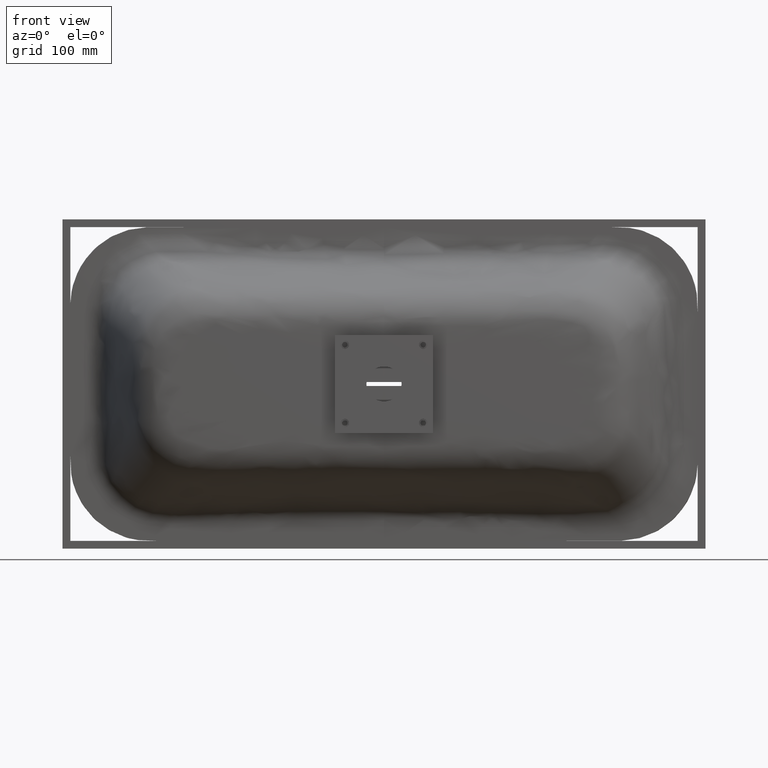
[diagram: clean part render]
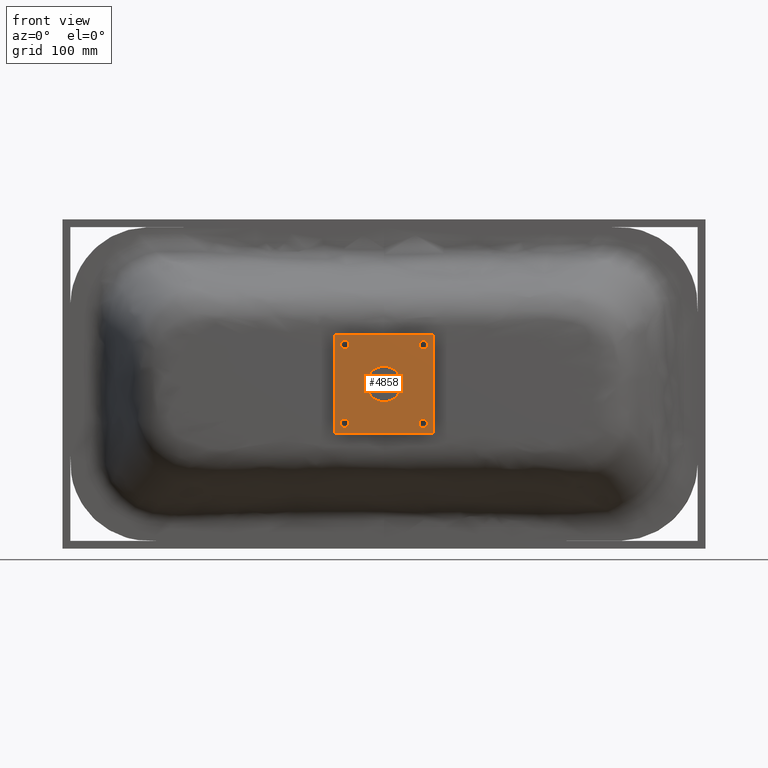
[diagram: same view with one face highlighted and labeled with its STEP entity id]
A machine part, front view. The second image highlights one B-rep face of the part: STEP entity #4858.
In plain terms, the highlighted planar face has unit normal (0, 1, 0).
Its self-contained STEP definition (entity closure, byte-faithful):
#132 = EDGE_LOOP ( 'NONE', ( #606, #2262 ) ) ;
#141 = VERTEX_POINT ( 'NONE', #382 ) ;
#153 = CARTESIAN_POINT ( 'NONE',  ( 62.49999999999978700, -25.99999999999999600, -62.50000000000020600 ) ) ;
#185 = AXIS2_PLACEMENT_3D ( 'NONE', #6838, #6846, #6865 ) ;
#187 = FACE_BOUND ( 'NONE', #369, .T. ) ;
#222 = EDGE_LOOP ( 'NONE', ( #767, #6126 ) ) ;
#229 = DIRECTION ( 'NONE',  ( -3.413935800722356400E-015, 0.0000000000000000000, -1.000000000000000000 ) ) ;
#261 = DIRECTION ( 'NONE',  ( -1.000000000000000000, 0.0000000000000000000, 3.413935800722356400E-015 ) ) ;
#275 = DIRECTION ( 'NONE',  ( 0.0000000000000000000, 1.000000000000000000, 0.0000000000000000000 ) ) ;
#276 = PLANE ( 'NONE',  #3379 ) ;
#299 = FACE_BOUND ( 'NONE', #222, .T. ) ;
#330 = DIRECTION ( 'NONE',  ( 1.000000000000000000, 0.0000000000000000000, -3.784851220313030000E-015 ) ) ;
#361 = CARTESIAN_POINT ( 'NONE',  ( -62.49999999999978700, -25.99999999999999600, 62.50000000000020600 ) ) ;
#363 = EDGE_LOOP ( 'NONE', ( #1933, #9019 ) ) ;
#369 = EDGE_LOOP ( 'NONE', ( #7130, #4144 ) ) ;
#379 = EDGE_LOOP ( 'NONE', ( #2188, #4484, #966, #10035 ) ) ;
#382 = CARTESIAN_POINT ( 'NONE',  ( 55.50000000000017800, -25.99999999999999600, 49.99999999999979400 ) ) ;
#478 = EDGE_CURVE ( 'NONE', #9123, #4082, #6441, .T. ) ;
#495 = CARTESIAN_POINT ( 'NONE',  ( -62.49999999999978700, -25.99999999999999600, 62.50000000000020600 ) ) ;
#539 = VERTEX_POINT ( 'NONE', #8892 ) ;
#582 = DIRECTION ( 'NONE',  ( 0.0000000000000000000, -1.000000000000000000, -0.0000000000000000000 ) ) ;
#606 = ORIENTED_EDGE ( 'NONE', *, *, #9841, .T. ) ;
#767 = ORIENTED_EDGE ( 'NONE', *, *, #4165, .F. ) ;
#966 = ORIENTED_EDGE ( 'NONE', *, *, #3439, .F. ) ;
#1015 = CARTESIAN_POINT ( 'NONE',  ( 22.50000000000000400, -25.99999999999999600, -7.405810021817149000E-014 ) ) ;
#1073 = CARTESIAN_POINT ( 'NONE',  ( 62.50000000000020600, -25.99999999999999600, 62.49999999999978700 ) ) ;
#1115 = VERTEX_POINT ( 'NONE', #8760 ) ;
#1130 = CIRCLE ( 'NONE', #4909, 5.500000000000005300 ) ;
#1449 = VERTEX_POINT ( 'NONE', #8701 ) ;
#1503 = ORIENTED_EDGE ( 'NONE', *, *, #1555, .F. ) ;
#1514 = EDGE_CURVE ( 'NONE', #1726, #539, #8471, .T. ) ;
#1555 = EDGE_CURVE ( 'NONE', #7004, #1449, #6589, .T. ) ;
#1726 = VERTEX_POINT ( 'NONE', #495 ) ;
#1795 = VERTEX_POINT ( 'NONE', #1015 ) ;
#1872 = AXIS2_PLACEMENT_3D ( 'NONE', #7691, #582, #330 ) ;
#1933 = ORIENTED_EDGE ( 'NONE', *, *, #9845, .F. ) ;
#2166 = CARTESIAN_POINT ( 'NONE',  ( 55.49999999999983700, -25.99999999999999600, -50.00000000000024200 ) ) ;
#2188 = ORIENTED_EDGE ( 'NONE', *, *, #1514, .F. ) ;
#2262 = ORIENTED_EDGE ( 'NONE', *, *, #4133, .T. ) ;
#2265 = CARTESIAN_POINT ( 'NONE',  ( -55.50000000000017800, -25.99999999999999600, -49.99999999999985100 ) ) ;
#2838 = DIRECTION ( 'NONE',  ( 1.000000000000000000, 0.0000000000000000000, -3.784851220313030000E-015 ) ) ;
#2889 = EDGE_CURVE ( 'NONE', #1449, #7004, #7376, .T. ) ;
#2901 = DIRECTION ( 'NONE',  ( 0.0000000000000000000, -1.000000000000000000, -0.0000000000000000000 ) ) ;
#2914 = CARTESIAN_POINT ( 'NONE',  ( 50.00000000000017800, -25.99999999999999600, 49.99999999999981500 ) ) ;
#2939 = EDGE_CURVE ( 'NONE', #6977, #5603, #9982, .T. ) ;
#3229 = CIRCLE ( 'NONE', #4885, 5.500000000000005300 ) ;
#3379 = AXIS2_PLACEMENT_3D ( 'NONE', #361, #275, #261 ) ;
#3406 = CARTESIAN_POINT ( 'NONE',  ( -62.50000000000020600, -25.99999999999999600, -62.49999999999978700 ) ) ;
#3415 = DIRECTION ( 'NONE',  ( 3.413935800722356400E-015, 0.0000000000000000000, 1.000000000000000000 ) ) ;
#3439 = EDGE_CURVE ( 'NONE', #4397, #4070, #6832, .T. ) ;
#3750 = AXIS2_PLACEMENT_3D ( 'NONE', #2914, #2901, #2838 ) ;
#3762 = FACE_BOUND ( 'NONE', #132, .T. ) ;
#3819 = DIRECTION ( 'NONE',  ( -1.000000000000000000, 0.0000000000000000000, 3.413935800722356400E-015 ) ) ;
#3887 = CARTESIAN_POINT ( 'NONE',  ( -44.50000000000017100, -25.99999999999999600, -49.99999999999989300 ) ) ;
#3906 = CARTESIAN_POINT ( 'NONE',  ( 62.49999999999978700, -25.99999999999999600, -62.50000000000020600 ) ) ;
#4045 = CIRCLE ( 'NONE', #5017, 22.50000000000000400 ) ;
#4070 = VERTEX_POINT ( 'NONE', #8899 ) ;
#4082 = VERTEX_POINT ( 'NONE', #3887 ) ;
#4133 = EDGE_CURVE ( 'NONE', #1795, #1115, #6718, .T. ) ;
#4144 = ORIENTED_EDGE ( 'NONE', *, *, #478, .F. ) ;
#4165 = EDGE_CURVE ( 'NONE', #141, #4663, #6656, .T. ) ;
#4397 = VERTEX_POINT ( 'NONE', #9016 ) ;
#4484 = ORIENTED_EDGE ( 'NONE', *, *, #8068, .F. ) ;
#4652 = ORIENTED_EDGE ( 'NONE', *, *, #2889, .F. ) ;
#4663 = VERTEX_POINT ( 'NONE', #9336 ) ;
#4747 = CIRCLE ( 'NONE', #3750, 5.500000000000005300 ) ;
#4858 = ADVANCED_FACE ( 'NONE', ( #8596, #299, #6419, #187, #3762, #5922 ), #276, .F. ) ;
#4885 = AXIS2_PLACEMENT_3D ( 'NONE', #8272, #8270, #8247 ) ;
#4909 = AXIS2_PLACEMENT_3D ( 'NONE', #8085, #8057, #8046 ) ;
#4924 = DIRECTION ( 'NONE',  ( 1.000000000000000000, 0.0000000000000000000, -3.524958103184872000E-015 ) ) ;
#5017 = AXIS2_PLACEMENT_3D ( 'NONE', #8167, #8140, #8129 ) ;
#5152 = DIRECTION ( 'NONE',  ( 0.0000000000000000000, 1.000000000000000000, 0.0000000000000000000 ) ) ;
#5255 = VECTOR ( 'NONE', #3415, 1000.000000000000000 ) ;
#5261 = EDGE_CURVE ( 'NONE', #539, #4397, #6228, .T. ) ;
#5527 = CARTESIAN_POINT ( 'NONE',  ( 0.0000000000000000000, -25.99999999999999600, -0.0000000000000000000 ) ) ;
#5603 = VERTEX_POINT ( 'NONE', #2166 ) ;
#5611 = LINE ( 'NONE', #3406, #5255 ) ;
#5922 = FACE_OUTER_BOUND ( 'NONE', #379, .T. ) ;
#6055 = AXIS2_PLACEMENT_3D ( 'NONE', #7082, #7090, #7107 ) ;
#6126 = ORIENTED_EDGE ( 'NONE', *, *, #9018, .F. ) ;
#6221 = VECTOR ( 'NONE', #229, 1000.000000000000000 ) ;
#6228 = LINE ( 'NONE', #153, #6221 ) ;
#6419 = FACE_BOUND ( 'NONE', #10123, .T. ) ;
#6441 = CIRCLE ( 'NONE', #9093, 5.500000000000005300 ) ;
#6589 = CIRCLE ( 'NONE', #1872, 5.500000000000005300 ) ;
#6656 = CIRCLE ( 'NONE', #7569, 5.500000000000005300 ) ;
#6718 = CIRCLE ( 'NONE', #7533, 22.50000000000000400 ) ;
#6800 = VECTOR ( 'NONE', #8277, 1000.000000000000000 ) ;
#6832 = LINE ( 'NONE', #3906, #6800 ) ;
#6838 = CARTESIAN_POINT ( 'NONE',  ( -49.99999999999982900, -25.99999999999999600, 50.00000000000016300 ) ) ;
#6846 = DIRECTION ( 'NONE',  ( 0.0000000000000000000, -1.000000000000000000, -0.0000000000000000000 ) ) ;
#6865 = DIRECTION ( 'NONE',  ( 1.000000000000000000, 0.0000000000000000000, -3.784851220313030000E-015 ) ) ;
#6977 = VERTEX_POINT ( 'NONE', #9519 ) ;
#7004 = VERTEX_POINT ( 'NONE', #9514 ) ;
#7082 = CARTESIAN_POINT ( 'NONE',  ( 49.99999999999982900, -25.99999999999999600, -50.00000000000022000 ) ) ;
#7090 = DIRECTION ( 'NONE',  ( 0.0000000000000000000, -1.000000000000000000, -0.0000000000000000000 ) ) ;
#7107 = DIRECTION ( 'NONE',  ( 1.000000000000000000, 0.0000000000000000000, -3.784851220313030000E-015 ) ) ;
#7130 = ORIENTED_EDGE ( 'NONE', *, *, #9774, .F. ) ;
#7376 = CIRCLE ( 'NONE', #185, 5.500000000000005300 ) ;
#7533 = AXIS2_PLACEMENT_3D ( 'NONE', #5527, #5152, #3819 ) ;
#7569 = AXIS2_PLACEMENT_3D ( 'NONE', #9286, #9287, #9097 ) ;
#7691 = CARTESIAN_POINT ( 'NONE',  ( -49.99999999999982900, -25.99999999999999600, 50.00000000000016300 ) ) ;
#8046 = DIRECTION ( 'NONE',  ( 1.000000000000000000, 0.0000000000000000000, -3.784851220313030000E-015 ) ) ;
#8057 = DIRECTION ( 'NONE',  ( 0.0000000000000000000, -1.000000000000000000, -0.0000000000000000000 ) ) ;
#8068 = EDGE_CURVE ( 'NONE', #4070, #1726, #5611, .T. ) ;
#8085 = CARTESIAN_POINT ( 'NONE',  ( 49.99999999999982900, -25.99999999999999600, -50.00000000000022000 ) ) ;
#8125 = DIRECTION ( 'NONE',  ( 0.0000000000000000000, -1.000000000000000000, -0.0000000000000000000 ) ) ;
#8126 = CARTESIAN_POINT ( 'NONE',  ( -50.00000000000017800, -25.99999999999999600, -49.99999999999987200 ) ) ;
#8129 = DIRECTION ( 'NONE',  ( -1.000000000000000000, 0.0000000000000000000, 3.413935800722356400E-015 ) ) ;
#8140 = DIRECTION ( 'NONE',  ( 0.0000000000000000000, 1.000000000000000000, 0.0000000000000000000 ) ) ;
#8167 = CARTESIAN_POINT ( 'NONE',  ( 0.0000000000000000000, -25.99999999999999600, -0.0000000000000000000 ) ) ;
#8247 = DIRECTION ( 'NONE',  ( 1.000000000000000000, 0.0000000000000000000, -3.784851220313030000E-015 ) ) ;
#8270 = DIRECTION ( 'NONE',  ( 0.0000000000000000000, -1.000000000000000000, -0.0000000000000000000 ) ) ;
#8272 = CARTESIAN_POINT ( 'NONE',  ( -50.00000000000017800, -25.99999999999999600, -49.99999999999987200 ) ) ;
#8277 = DIRECTION ( 'NONE',  ( -1.000000000000000000, 0.0000000000000000000, 3.524958103184872000E-015 ) ) ;
#8349 = VECTOR ( 'NONE', #4924, 1000.000000000000000 ) ;
#8471 = LINE ( 'NONE', #1073, #8349 ) ;
#8596 = FACE_BOUND ( 'NONE', #363, .T. ) ;
#8701 = CARTESIAN_POINT ( 'NONE',  ( -55.49999999999983700, -25.99999999999999600, 50.00000000000018500 ) ) ;
#8760 = CARTESIAN_POINT ( 'NONE',  ( -22.50000000000000400, -25.99999999999999600, 7.681355551625303100E-014 ) ) ;
#8892 = CARTESIAN_POINT ( 'NONE',  ( 62.50000000000020600, -25.99999999999999600, 62.49999999999978700 ) ) ;
#8899 = CARTESIAN_POINT ( 'NONE',  ( -62.50000000000020600, -25.99999999999999600, -62.49999999999978700 ) ) ;
#9016 = CARTESIAN_POINT ( 'NONE',  ( 62.49999999999978700, -25.99999999999999600, -62.50000000000020600 ) ) ;
#9018 = EDGE_CURVE ( 'NONE', #4663, #141, #4747, .T. ) ;
#9019 = ORIENTED_EDGE ( 'NONE', *, *, #2939, .F. ) ;
#9093 = AXIS2_PLACEMENT_3D ( 'NONE', #8126, #8125, #9482 ) ;
#9097 = DIRECTION ( 'NONE',  ( 1.000000000000000000, 0.0000000000000000000, -3.784851220313030000E-015 ) ) ;
#9123 = VERTEX_POINT ( 'NONE', #2265 ) ;
#9286 = CARTESIAN_POINT ( 'NONE',  ( 50.00000000000017800, -25.99999999999999600, 49.99999999999981500 ) ) ;
#9287 = DIRECTION ( 'NONE',  ( 0.0000000000000000000, -1.000000000000000000, -0.0000000000000000000 ) ) ;
#9336 = CARTESIAN_POINT ( 'NONE',  ( 44.50000000000017100, -25.99999999999999600, 49.99999999999983700 ) ) ;
#9482 = DIRECTION ( 'NONE',  ( 1.000000000000000000, 0.0000000000000000000, -3.784851220313030000E-015 ) ) ;
#9514 = CARTESIAN_POINT ( 'NONE',  ( -44.49999999999982200, -25.99999999999999600, 50.00000000000014200 ) ) ;
#9519 = CARTESIAN_POINT ( 'NONE',  ( 44.49999999999982200, -25.99999999999999600, -50.00000000000019900 ) ) ;
#9774 = EDGE_CURVE ( 'NONE', #4082, #9123, #3229, .T. ) ;
#9841 = EDGE_CURVE ( 'NONE', #1115, #1795, #4045, .T. ) ;
#9845 = EDGE_CURVE ( 'NONE', #5603, #6977, #1130, .T. ) ;
#9982 = CIRCLE ( 'NONE', #6055, 5.500000000000005300 ) ;
#10035 = ORIENTED_EDGE ( 'NONE', *, *, #5261, .F. ) ;
#10123 = EDGE_LOOP ( 'NONE', ( #1503, #4652 ) ) ;